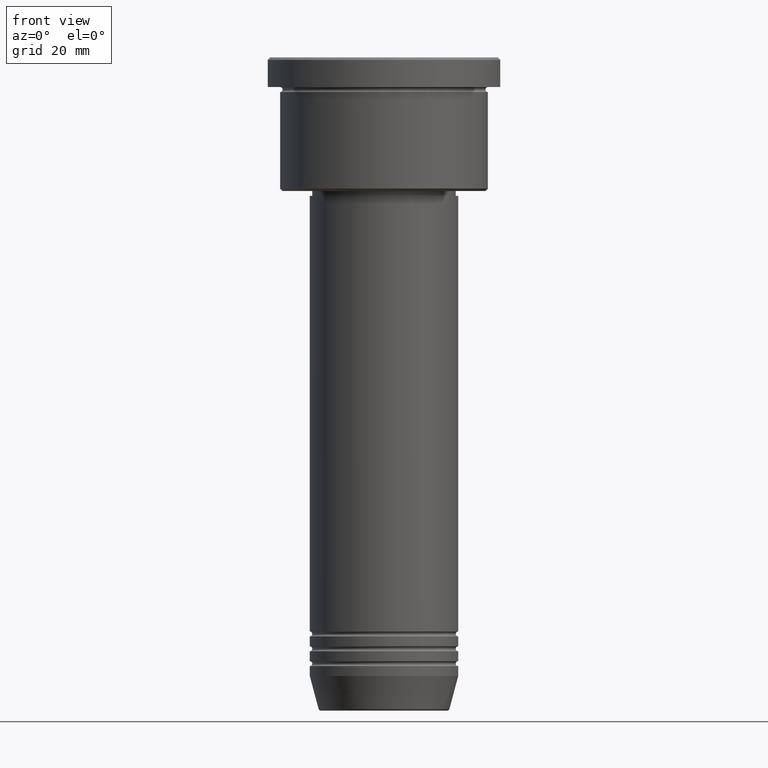
[diagram: clean part render]
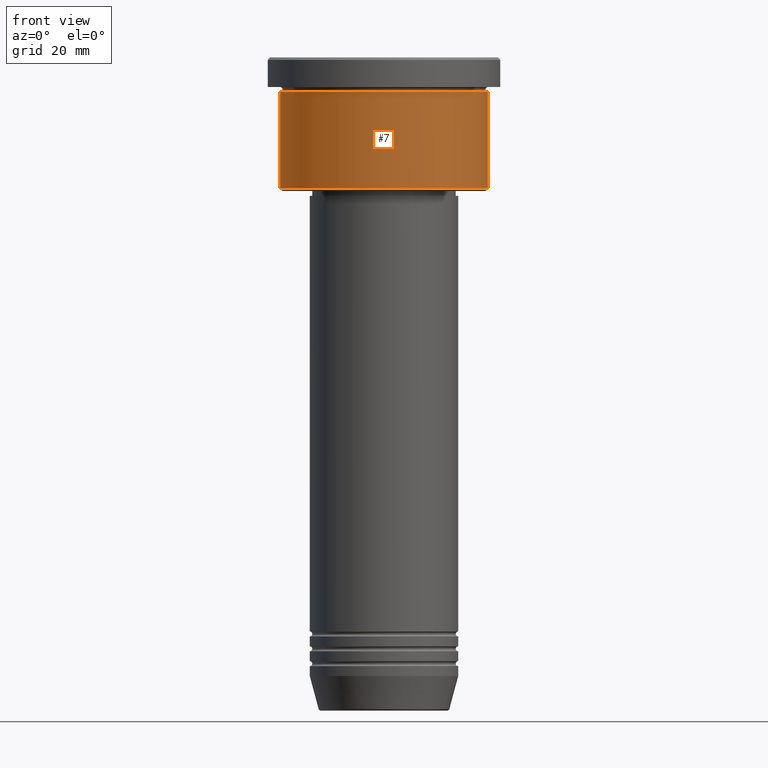
[diagram: same view with one face highlighted and labeled with its STEP entity id]
A machine part, front view. The second image highlights one B-rep face of the part: STEP entity #7.
In plain terms, the highlighted cylindrical surface (partial cylindrical patch) has radius 21 mm, axis along (-0, -0, 1).
Its self-contained STEP definition (entity closure, byte-faithful):
#7 = ADVANCED_FACE ( 'NONE', ( #628 ), #719, .T. ) ;
#34 = DIRECTION ( 'NONE',  ( -0.000000000000000000, -0.000000000000000000, 1.000000000000000000 ) ) ;
#98 = ORIENTED_EDGE ( 'NONE', *, *, #287, .F. ) ;
#135 = CARTESIAN_POINT ( 'NONE',  ( 0.000000000000000000, 0.000000000000000000, -26.49999999999998934 ) ) ;
#148 = LINE ( 'NONE', #1156, #333 ) ;
#157 = DIRECTION ( 'NONE',  ( -0.000000000000000000, -0.000000000000000000, 1.000000000000000000 ) ) ;
#165 = DIRECTION ( 'NONE',  ( -0.000000000000000000, -0.000000000000000000, 1.000000000000000000 ) ) ;
#192 = ORIENTED_EDGE ( 'NONE', *, *, #685, .F. ) ;
#229 = AXIS2_PLACEMENT_3D ( 'NONE', #135, #234, #1145 ) ;
#234 = DIRECTION ( 'NONE',  ( -0.000000000000000000, -0.000000000000000000, 1.000000000000000000 ) ) ;
#259 = DIRECTION ( 'NONE',  ( 1.000000000000000000, 0.000000000000000000, 0.000000000000000000 ) ) ;
#264 = VERTEX_POINT ( 'NONE', #1057 ) ;
#287 = EDGE_CURVE ( 'NONE', #264, #997, #659, .T. ) ;
#333 = VECTOR ( 'NONE', #157, 1000.000000000000000 ) ;
#353 = VERTEX_POINT ( 'NONE', #905 ) ;
#357 = EDGE_LOOP ( 'NONE', ( #192, #900, #515, #98 ) ) ;
#487 = CIRCLE ( 'NONE', #229, 21.00000000000000000 ) ;
#490 = EDGE_CURVE ( 'NONE', #353, #997, #148, .T. ) ;
#492 = LINE ( 'NONE', #854, #1070 ) ;
#515 = ORIENTED_EDGE ( 'NONE', *, *, #490, .T. ) ;
#564 = DIRECTION ( 'NONE',  ( -0.000000000000000000, -0.000000000000000000, 1.000000000000000000 ) ) ;
#628 = FACE_OUTER_BOUND ( 'NONE', #357, .T. ) ;
#642 = CARTESIAN_POINT ( 'NONE',  ( 0.000000000000000000, 0.000000000000000000, -6.999999999999994671 ) ) ;
#648 = CARTESIAN_POINT ( 'NONE',  ( 0.000000000000000000, 0.000000000000000000, 0.000000000000000000 ) ) ;
#659 = CIRCLE ( 'NONE', #678, 21.00000000000000000 ) ;
#678 = AXIS2_PLACEMENT_3D ( 'NONE', #642, #564, #989 ) ;
#685 = EDGE_CURVE ( 'NONE', #799, #264, #492, .T. ) ;
#719 = CYLINDRICAL_SURFACE ( 'NONE', #1101, 21.00000000000000000 ) ;
#768 = CARTESIAN_POINT ( 'NONE',  ( -21.00000000000000000, 2.571758278209441661E-15, -26.49999999999998934 ) ) ;
#799 = VERTEX_POINT ( 'NONE', #768 ) ;
#854 = CARTESIAN_POINT ( 'NONE',  ( -21.00000000000000000, 2.571758278209441661E-15, 0.000000000000000000 ) ) ;
#900 = ORIENTED_EDGE ( 'NONE', *, *, #951, .T. ) ;
#905 = CARTESIAN_POINT ( 'NONE',  ( 21.00000000000000000, 0.000000000000000000, -26.49999999999998934 ) ) ;
#951 = EDGE_CURVE ( 'NONE', #799, #353, #487, .T. ) ;
#989 = DIRECTION ( 'NONE',  ( 1.000000000000000000, 0.000000000000000000, 0.000000000000000000 ) ) ;
#997 = VERTEX_POINT ( 'NONE', #1055 ) ;
#1055 = CARTESIAN_POINT ( 'NONE',  ( 21.00000000000000000, 0.000000000000000000, -6.999999999999994671 ) ) ;
#1057 = CARTESIAN_POINT ( 'NONE',  ( -21.00000000000000000, 2.571758278209441661E-15, -6.999999999999994671 ) ) ;
#1070 = VECTOR ( 'NONE', #34, 1000.000000000000000 ) ;
#1101 = AXIS2_PLACEMENT_3D ( 'NONE', #648, #165, #259 ) ;
#1145 = DIRECTION ( 'NONE',  ( -1.000000000000000000, 0.000000000000000000, 0.000000000000000000 ) ) ;
#1156 = CARTESIAN_POINT ( 'NONE',  ( 21.00000000000000000, 0.000000000000000000, 0.000000000000000000 ) ) ;